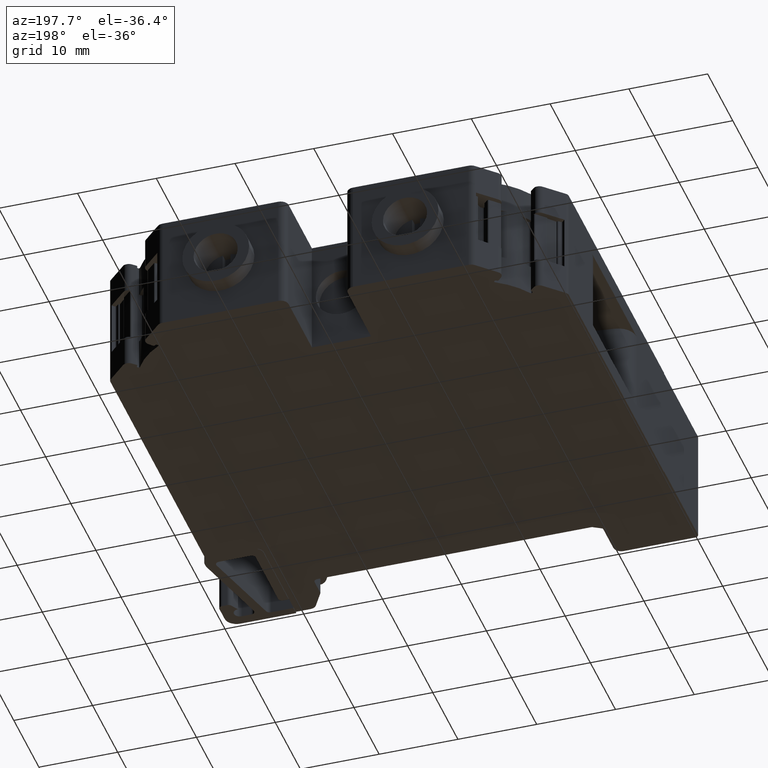
[diagram: clean part render]
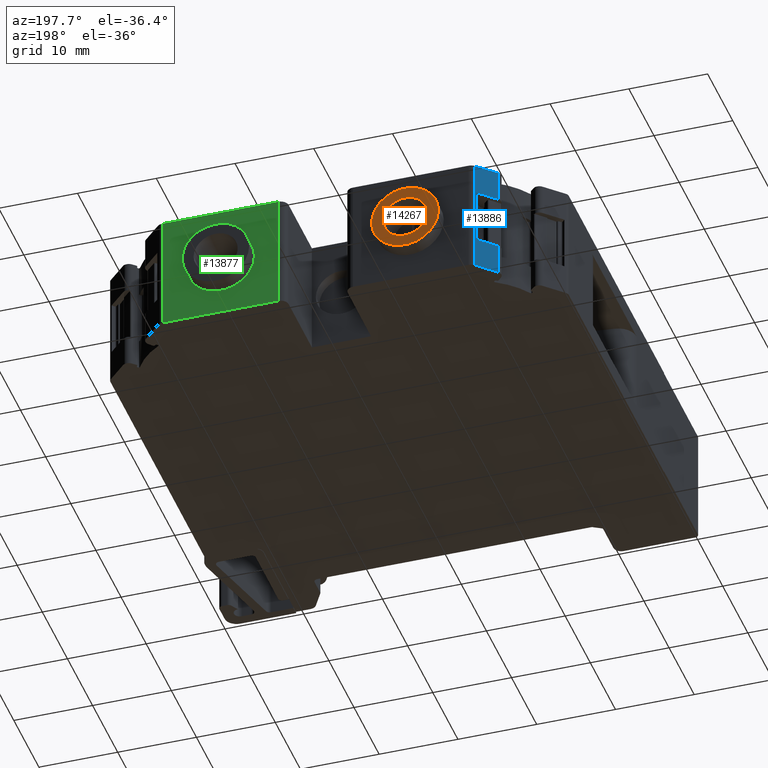
[diagram: same view with three faces highlighted in distinct colors, each labeled with its STEP entity id]
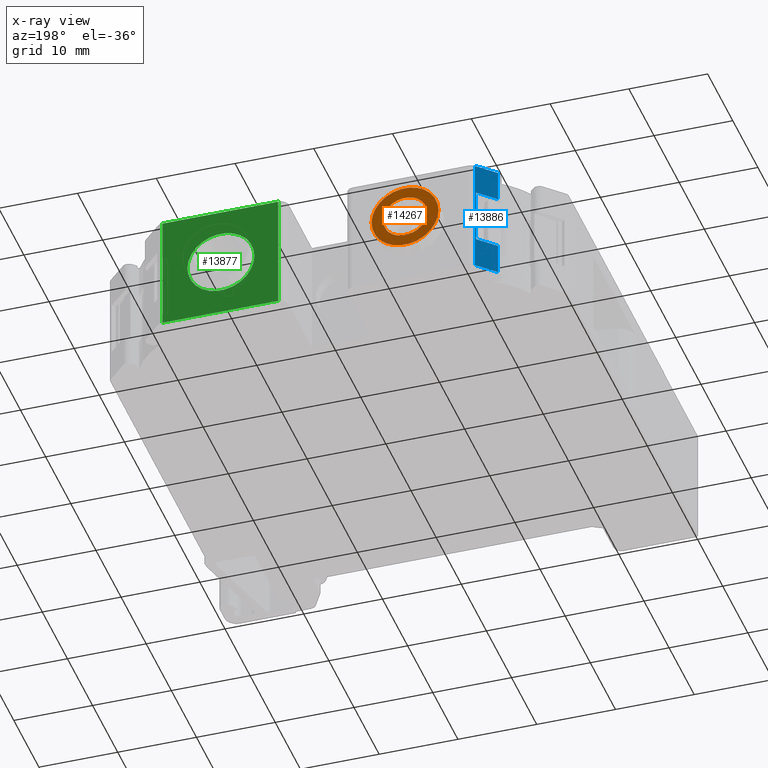
[diagram: x-ray of the same camera — body ghosted, the three highlighted faces saturated]
A machine part, auxiliary view with three faces highlighted in distinct colors.
The next image is the same camera in x-ray (body ghosted, the three faces saturated) — at least one of them is partly hidden behind the body in this view.
Their STEP definitions:

[orange] entity #14267 — the highlighted planar face has unit normal (0, 1, -0).
#200 = CARTESIAN_POINT ( 'NONE',  ( 1.567630163408658000, -37.87966301493494800, -104.2930641829441800 ) ) ;
#208 = CARTESIAN_POINT ( 'NONE',  ( -6.932369836591342400, -37.87966301493462900, -104.2930641829441900 ) ) ;
#1306 = FACE_OUTER_BOUND ( 'NONE', #10284, .T. ) ;
#1323 = FACE_BOUND ( 'NONE', #10321, .T. ) ;
#1330 = DIRECTION ( 'NONE',  ( 3.703930697252520300E-014, 1.000000000000000000, -1.059119155224958100E-014 ) ) ;
#1354 = DIRECTION ( 'NONE',  ( -1.000000000000000000, 3.703930697252520300E-014, 0.0000000000000000000 ) ) ;
#1371 = PLANE ( 'NONE',  #6976 ) ;
#1373 = CARTESIAN_POINT ( 'NONE',  ( -2.682369836591342000, -37.87966301493479200, -104.2930641829441900 ) ) ;
#3547 = CARTESIAN_POINT ( 'NONE',  ( -5.482369836591342200, -37.87966301493468500, -104.2930641829441900 ) ) ;
#3561 = CARTESIAN_POINT ( 'NONE',  ( 0.1176301634086577800, -37.87966301493489100, -104.2930641829441600 ) ) ;
#5431 = VERTEX_POINT ( 'NONE', #200 ) ;
#5432 = VERTEX_POINT ( 'NONE', #208 ) ;
#5499 = VERTEX_POINT ( 'NONE', #3547 ) ;
#5502 = VERTEX_POINT ( 'NONE', #3561 ) ;
#6976 = AXIS2_PLACEMENT_3D ( 'NONE', #1373, #1330, #1354 ) ;
#7503 = AXIS2_PLACEMENT_3D ( 'NONE', #11241, #11223, #11246 ) ;
#7508 = CIRCLE ( 'NONE', #7503, 4.250000000000000000 ) ;
#7751 = CIRCLE ( 'NONE', #7769, 2.799999999999999800 ) ;
#7769 = AXIS2_PLACEMENT_3D ( 'NONE', #12465, #12466, #12493 ) ;
#9415 = ORIENTED_EDGE ( 'NONE', *, *, #11684, .T. ) ;
#9423 = ORIENTED_EDGE ( 'NONE', *, *, #17669, .T. ) ;
#9460 = ORIENTED_EDGE ( 'NONE', *, *, #17362, .F. ) ;
#9467 = ORIENTED_EDGE ( 'NONE', *, *, #11542, .F. ) ;
#10284 = EDGE_LOOP ( 'NONE', ( #9460, #9467 ) ) ;
#10321 = EDGE_LOOP ( 'NONE', ( #9415, #9423 ) ) ;
#11223 = DIRECTION ( 'NONE',  ( -3.703930697252520300E-014, -1.000000000000000000, 1.059119155224958300E-014 ) ) ;
#11241 = CARTESIAN_POINT ( 'NONE',  ( -2.682369836591342000, -37.87966301493479200, -104.2930641829441900 ) ) ;
#11246 = DIRECTION ( 'NONE',  ( -1.000000000000000000, 3.755166112702735500E-014, 0.0000000000000000000 ) ) ;
#11542 = EDGE_CURVE ( 'NONE', #5431, #5432, #13213, .T. ) ;
#11546 = DIRECTION ( 'NONE',  ( -1.000000000000000000, 3.755166112702735500E-014, 0.0000000000000000000 ) ) ;
#11560 = CARTESIAN_POINT ( 'NONE',  ( -2.682369836591342000, -37.87966301493479200, -104.2930641829441900 ) ) ;
#11567 = DIRECTION ( 'NONE',  ( -3.703930697252520300E-014, -1.000000000000000000, 1.059119155224958300E-014 ) ) ;
#11684 = EDGE_CURVE ( 'NONE', #5499, #5502, #13321, .T. ) ;
#12465 = CARTESIAN_POINT ( 'NONE',  ( -2.682369836591342000, -37.87966301493479200, -104.2930641829441900 ) ) ;
#12466 = DIRECTION ( 'NONE',  ( -3.703930697252520300E-014, -1.000000000000000000, 1.059119155224958300E-014 ) ) ;
#12493 = DIRECTION ( 'NONE',  ( -1.000000000000000000, 3.717264591378872800E-014, 0.0000000000000000000 ) ) ;
#13213 = CIRCLE ( 'NONE', #13305, 4.250000000000000000 ) ;
#13305 = AXIS2_PLACEMENT_3D ( 'NONE', #11560, #11567, #11546 ) ;
#13321 = CIRCLE ( 'NONE', #13333, 2.799999999999999800 ) ;
#13333 = AXIS2_PLACEMENT_3D ( 'NONE', #14506, #14461, #14467 ) ;
#14267 = ADVANCED_FACE ( 'NONE', ( #1323, #1306 ), #1371, .T. ) ;
#14461 = DIRECTION ( 'NONE',  ( -3.703930697252520300E-014, -1.000000000000000000, 1.059119155224958300E-014 ) ) ;
#14467 = DIRECTION ( 'NONE',  ( -1.000000000000000000, 3.717264591378872800E-014, 0.0000000000000000000 ) ) ;
#14506 = CARTESIAN_POINT ( 'NONE',  ( -2.682369836591342000, -37.87966301493479200, -104.2930641829441900 ) ) ;
#17362 = EDGE_CURVE ( 'NONE', #5432, #5431, #7508, .T. ) ;
#17669 = EDGE_CURVE ( 'NONE', #5502, #5499, #7751, .T. ) ;

[blue] entity #13886 — the highlighted planar face has unit normal (-0.7072, 0.7071, -0).
#78 = CARTESIAN_POINT ( 'NONE',  ( -10.89618487085712500, -40.37002686990522400, -100.7971616796368900 ) ) ;
#121 = CARTESIAN_POINT ( 'NONE',  ( -10.89618487085324200, -40.37002686990867800, -107.7932091105100500 ) ) ;
#130 = CARTESIAN_POINT ( 'NONE',  ( -13.02818139801816100, -42.50228681330388300, -96.84730660721318400 ) ) ;
#153 = CARTESIAN_POINT ( 'NONE',  ( -10.79876995218708700, -40.27259991526467100, -111.7430641829478200 ) ) ;
#154 = CARTESIAN_POINT ( 'NONE',  ( -13.02818139800582200, -42.50228681330707300, -111.7430641829477300 ) ) ;
#156 = CARTESIAN_POINT ( 'NONE',  ( -10.79876995219485300, -40.27259991525690500, -96.84730660721318400 ) ) ;
#166 = CARTESIAN_POINT ( 'NONE',  ( -13.02818139801608900, -42.50228681330592200, -100.7971616796372000 ) ) ;
#180 = CARTESIAN_POINT ( 'NONE',  ( -13.02818139800838400, -42.50228681330551700, -107.7932091105109300 ) ) ;
#2427 = CARTESIAN_POINT ( 'NONE',  ( -38.95257573976810800, -68.42988421211266800, -96.84730660721318400 ) ) ;
#2453 = DIRECTION ( 'NONE',  ( 0.7070630996761267900, 0.7071504599987102900, -2.805753616436381200E-017 ) ) ;
#2455 = LINE ( 'NONE', #2427, #12827 ) ;
#2459 = LINE ( 'NONE', #2476, #12816 ) ;
#2476 = CARTESIAN_POINT ( 'NONE',  ( -38.95257573976040500, -68.42988421212052700, -111.7430641829468400 ) ) ;
#2499 = DIRECTION ( 'NONE',  ( -0.7070630996761267900, -0.7071504599987102900, 2.423213506469939500E-014 ) ) ;
#2647 = CARTESIAN_POINT ( 'NONE',  ( -10.79876995218731900, -40.27259991526443600, -111.2930641829494800 ) ) ;
#2648 = CARTESIAN_POINT ( 'NONE',  ( -13.02818139801062700, -42.50228681331141400, -111.2930641829494800 ) ) ;
#2651 = LINE ( 'NONE', #2671, #12935 ) ;
#2653 = DIRECTION ( 'NONE',  ( -5.214454139446314000E-013, 5.213809953489453900E-013, 1.000000000000000000 ) ) ;
#2660 = DIRECTION ( 'NONE',  ( 5.214454139446314000E-013, -5.213809953489453900E-013, -1.000000000000000000 ) ) ;
#2669 = LINE ( 'NONE', #2647, #12877 ) ;
#2671 = CARTESIAN_POINT ( 'NONE',  ( -13.02818139800605700, -42.50228681330683900, -111.2930641829494800 ) ) ;
#2685 = LINE ( 'NONE', #2648, #12954 ) ;
#2690 = DIRECTION ( 'NONE',  ( -0.7070630996761267900, -0.7071504599987102900, 0.0000000000000000000 ) ) ;
#2699 = DIRECTION ( 'NONE',  ( -5.214454139446314000E-013, 5.213809953489453900E-013, 1.000000000000000000 ) ) ;
#2702 = DIRECTION ( 'NONE',  ( -5.214454139446314000E-013, 5.213809953489453900E-013, 1.000000000000000000 ) ) ;
#2708 = LINE ( 'NONE', #2720, #12949 ) ;
#2709 = CARTESIAN_POINT ( 'NONE',  ( -19.55641771781730000, -49.03132972141737900, -100.7971616796368900 ) ) ;
#2720 = CARTESIAN_POINT ( 'NONE',  ( -10.89618487085141800, -40.37002686991050400, -111.2930641829494800 ) ) ;
#2727 = LINE ( 'NONE', #2709, #12970 ) ;
#2756 = CARTESIAN_POINT ( 'NONE',  ( -19.55641771781365500, -49.03132972142102400, -107.7932091105109300 ) ) ;
#2757 = DIRECTION ( 'NONE',  ( 0.7070630996761267900, 0.7071504599987102900, -0.0000000000000000000 ) ) ;
#2766 = LINE ( 'NONE', #2756, #12979 ) ;
#3661 = EDGE_CURVE ( 'NONE', #5375, #5409, #2455, .T. ) ;
#3670 = EDGE_CURVE ( 'NONE', #5376, #5374, #2459, .T. ) ;
#3729 = EDGE_CURVE ( 'NONE', #5374, #5406, #2651, .T. ) ;
#3735 = EDGE_CURVE ( 'NONE', #5409, #5376, #2669, .T. ) ;
#3739 = EDGE_CURVE ( 'NONE', #5401, #5375, #2685, .T. ) ;
#3743 = EDGE_CURVE ( 'NONE', #5332, #5316, #2708, .T. ) ;
#3749 = EDGE_CURVE ( 'NONE', #5316, #5401, #2727, .T. ) ;
#3762 = EDGE_CURVE ( 'NONE', #5406, #5332, #2766, .T. ) ;
#5316 = VERTEX_POINT ( 'NONE', #78 ) ;
#5332 = VERTEX_POINT ( 'NONE', #121 ) ;
#5374 = VERTEX_POINT ( 'NONE', #154 ) ;
#5375 = VERTEX_POINT ( 'NONE', #130 ) ;
#5376 = VERTEX_POINT ( 'NONE', #153 ) ;
#5401 = VERTEX_POINT ( 'NONE', #166 ) ;
#5406 = VERTEX_POINT ( 'NONE', #180 ) ;
#5409 = VERTEX_POINT ( 'NONE', #156 ) ;
#6516 = AXIS2_PLACEMENT_3D ( 'NONE', #15940, #15965, #15978 ) ;
#8352 = ORIENTED_EDGE ( 'NONE', *, *, #3739, .T. ) ;
#8366 = ORIENTED_EDGE ( 'NONE', *, *, #3729, .T. ) ;
#8375 = ORIENTED_EDGE ( 'NONE', *, *, #3743, .T. ) ;
#8417 = ORIENTED_EDGE ( 'NONE', *, *, #3735, .T. ) ;
#8444 = ORIENTED_EDGE ( 'NONE', *, *, #3661, .T. ) ;
#8445 = ORIENTED_EDGE ( 'NONE', *, *, #3762, .T. ) ;
#8446 = ORIENTED_EDGE ( 'NONE', *, *, #3670, .T. ) ;
#8457 = ORIENTED_EDGE ( 'NONE', *, *, #3749, .T. ) ;
#10385 = EDGE_LOOP ( 'NONE', ( #8366, #8445, #8375, #8457, #8352, #8444, #8417, #8446 ) ) ;
#12816 = VECTOR ( 'NONE', #2499, 1000.000000000000000 ) ;
#12827 = VECTOR ( 'NONE', #2453, 1000.000000000000000 ) ;
#12877 = VECTOR ( 'NONE', #2660, 1000.000000000000000 ) ;
#12935 = VECTOR ( 'NONE', #2653, 1000.000000000000000 ) ;
#12949 = VECTOR ( 'NONE', #2702, 1000.000000000000000 ) ;
#12954 = VECTOR ( 'NONE', #2699, 1000.000000000000000 ) ;
#12970 = VECTOR ( 'NONE', #2690, 1000.000000000000000 ) ;
#12979 = VECTOR ( 'NONE', #2757, 1000.000000000000000 ) ;
#13886 = ADVANCED_FACE ( 'NONE', ( #15944 ), #15949, .T. ) ;
#15940 = CARTESIAN_POINT ( 'NONE',  ( -19.55641771781182900, -49.03132972142285000, -111.2930641829494800 ) ) ;
#15944 = FACE_OUTER_BOUND ( 'NONE', #10385, .T. ) ;
#15949 = PLANE ( 'NONE',  #6516 ) ;
#15965 = DIRECTION ( 'NONE',  ( -0.7071504599987102900, 0.7070630996761267900, -7.373896270188135900E-013 ) ) ;
#15978 = DIRECTION ( 'NONE',  ( -0.7070630996761267900, -0.7071504599987102900, 0.0000000000000000000 ) ) ;

[green] entity #13877 — the highlighted planar face has unit normal (-0, 1, 0).
#100 = CARTESIAN_POINT ( 'NONE',  ( 14.08763016340982200, -39.97966301493446700, -96.84730660721318400 ) ) ;
#125 = CARTESIAN_POINT ( 'NONE',  ( 28.76687981900120800, -39.97966301493442400, -96.84730660721318400 ) ) ;
#131 = CARTESIAN_POINT ( 'NONE',  ( 28.76687981900120800, -39.97966301493442400, -111.7430641829497100 ) ) ;
#191 = CARTESIAN_POINT ( 'NONE',  ( 14.08763016340982200, -39.97966301493446700, -111.7430641829490100 ) ) ;
#213 = CARTESIAN_POINT ( 'NONE',  ( 25.60763016340857900, -39.97966301493463700, -104.2930641829443500 ) ) ;
#2329 = CARTESIAN_POINT ( 'NONE',  ( 14.08763016340982200, -39.97966301493446700, -97.29730660721416800 ) ) ;
#2330 = DIRECTION ( 'NONE',  ( 1.000077679837776500E-032, -3.469446951953605700E-018, 1.000000000000000000 ) ) ;
#2363 = LINE ( 'NONE', #2329, #13647 ) ;
#2368 = CARTESIAN_POINT ( 'NONE',  ( 28.76687981900120800, -39.97966301493442400, -97.29730660721416800 ) ) ;
#2389 = DIRECTION ( 'NONE',  ( -1.000077679837776500E-032, 3.469446951953605700E-018, -1.000000000000000000 ) ) ;
#2390 = LINE ( 'NONE', #2368, #13698 ) ;
#2413 = CARTESIAN_POINT ( 'NONE',  ( 38.43667272263905200, -39.97966301493440300, -96.84730660721318400 ) ) ;
#2422 = LINE ( 'NONE', #2434, #12856 ) ;
#2429 = LINE ( 'NONE', #2413, #12840 ) ;
#2434 = CARTESIAN_POINT ( 'NONE',  ( 38.43667272263874700, -39.97966301493440300, -111.7430641829501800 ) ) ;
#2435 = DIRECTION ( 'NONE',  ( 1.000000000000000000, 2.882527658405741200E-015, -3.968179951296944400E-017 ) ) ;
#2447 = DIRECTION ( 'NONE',  ( -1.000000000000000000, -2.882527658405741200E-015, 4.824125040409023800E-014 ) ) ;
#2519 = DIRECTION ( 'NONE',  ( -1.000000000000000000, 3.755166112702735500E-014, 0.0000000000000000000 ) ) ;
#2521 = DIRECTION ( 'NONE',  ( -3.703930697252520300E-014, -1.000000000000000000, 1.059119155224958300E-014 ) ) ;
#2538 = CARTESIAN_POINT ( 'NONE',  ( 21.35763016340857900, -39.97966301493447400, -104.2930641829443500 ) ) ;
#3519 = CARTESIAN_POINT ( 'NONE',  ( 17.10763016340857900, -39.97966301493431700, -104.2930641829443500 ) ) ;
#3629 = EDGE_CURVE ( 'NONE', #5416, #5342, #2363, .T. ) ;
#3639 = EDGE_CURVE ( 'NONE', #5380, #5379, #2390, .T. ) ;
#3650 = EDGE_CURVE ( 'NONE', #5379, #5416, #2422, .T. ) ;
#3656 = EDGE_CURVE ( 'NONE', #5342, #5380, #2429, .T. ) ;
#3683 = EDGE_CURVE ( 'NONE', #5466, #5443, #12794, .T. ) ;
#5342 = VERTEX_POINT ( 'NONE', #100 ) ;
#5379 = VERTEX_POINT ( 'NONE', #131 ) ;
#5380 = VERTEX_POINT ( 'NONE', #125 ) ;
#5416 = VERTEX_POINT ( 'NONE', #191 ) ;
#5443 = VERTEX_POINT ( 'NONE', #213 ) ;
#5466 = VERTEX_POINT ( 'NONE', #3519 ) ;
#6526 = AXIS2_PLACEMENT_3D ( 'NONE', #15893, #15915, #15887 ) ;
#8423 = ORIENTED_EDGE ( 'NONE', *, *, #3683, .T. ) ;
#8465 = ORIENTED_EDGE ( 'NONE', *, *, #12841, .T. ) ;
#8504 = ORIENTED_EDGE ( 'NONE', *, *, #3656, .T. ) ;
#8505 = ORIENTED_EDGE ( 'NONE', *, *, #3629, .T. ) ;
#8509 = ORIENTED_EDGE ( 'NONE', *, *, #3639, .T. ) ;
#8515 = ORIENTED_EDGE ( 'NONE', *, *, #3650, .T. ) ;
#10408 = EDGE_LOOP ( 'NONE', ( #8423, #8465 ) ) ;
#10435 = EDGE_LOOP ( 'NONE', ( #8504, #8509, #8515, #8505 ) ) ;
#12794 = CIRCLE ( 'NONE', #12833, 4.250000000000000000 ) ;
#12833 = AXIS2_PLACEMENT_3D ( 'NONE', #2538, #2521, #2519 ) ;
#12840 = VECTOR ( 'NONE', #2435, 1000.000000000000000 ) ;
#12841 = EDGE_CURVE ( 'NONE', #5443, #5466, #13499, .T. ) ;
#12856 = VECTOR ( 'NONE', #2447, 1000.000000000000000 ) ;
#13482 = AXIS2_PLACEMENT_3D ( 'NONE', #14911, #14875, #14893 ) ;
#13499 = CIRCLE ( 'NONE', #13482, 4.250000000000000000 ) ;
#13647 = VECTOR ( 'NONE', #2330, 1000.000000000000000 ) ;
#13698 = VECTOR ( 'NONE', #2389, 1000.000000000000000 ) ;
#13877 = ADVANCED_FACE ( 'NONE', ( #15900, #15925 ), #15904, .T. ) ;
#14875 = DIRECTION ( 'NONE',  ( -3.703930697252520300E-014, -1.000000000000000000, 1.059119155224958300E-014 ) ) ;
#14893 = DIRECTION ( 'NONE',  ( -1.000000000000000000, 3.755166112702735500E-014, 0.0000000000000000000 ) ) ;
#14911 = CARTESIAN_POINT ( 'NONE',  ( 21.35763016340857900, -39.97966301493447400, -104.2930641829443500 ) ) ;
#15887 = DIRECTION ( 'NONE',  ( -1.000000000000000000, -2.882527658405741200E-015, 0.0000000000000000000 ) ) ;
#15893 = CARTESIAN_POINT ( 'NONE',  ( 28.76687981900110100, -39.97966301493442400, -97.29730660721416800 ) ) ;
#15900 = FACE_OUTER_BOUND ( 'NONE', #10435, .T. ) ;
#15904 = PLANE ( 'NONE',  #6526 ) ;
#15915 = DIRECTION ( 'NONE',  ( -2.882527658405741200E-015, 1.000000000000000000, 3.469446951953605700E-018 ) ) ;
#15925 = FACE_BOUND ( 'NONE', #10408, .T. ) ;